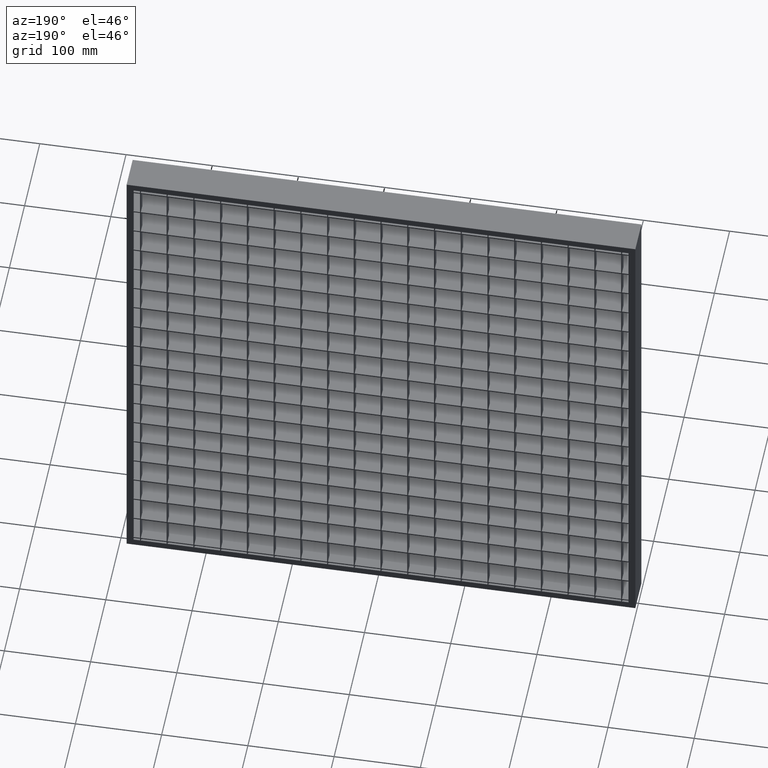
[diagram: clean part render]
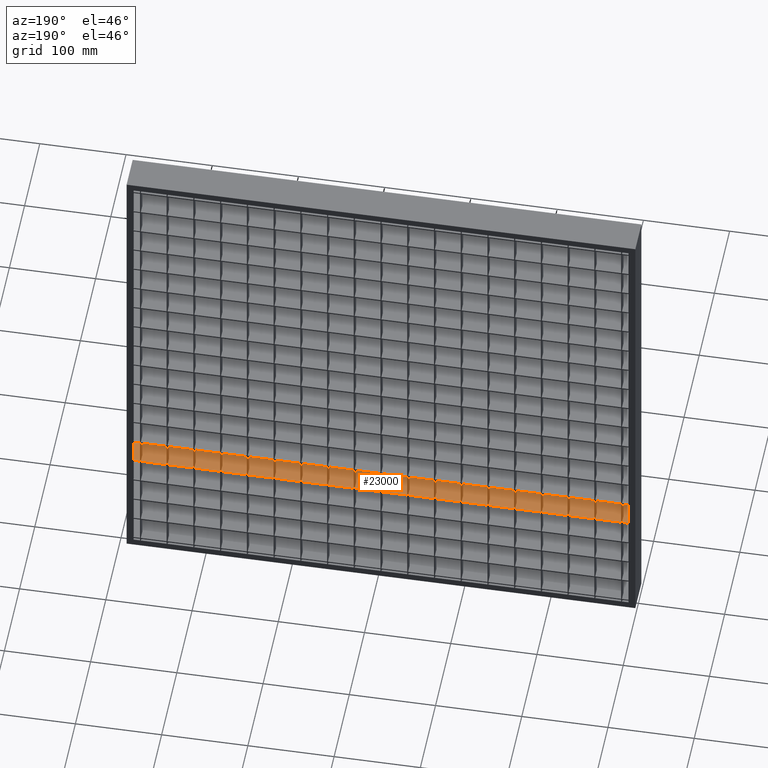
[diagram: same view with one face highlighted and labeled with its STEP entity id]
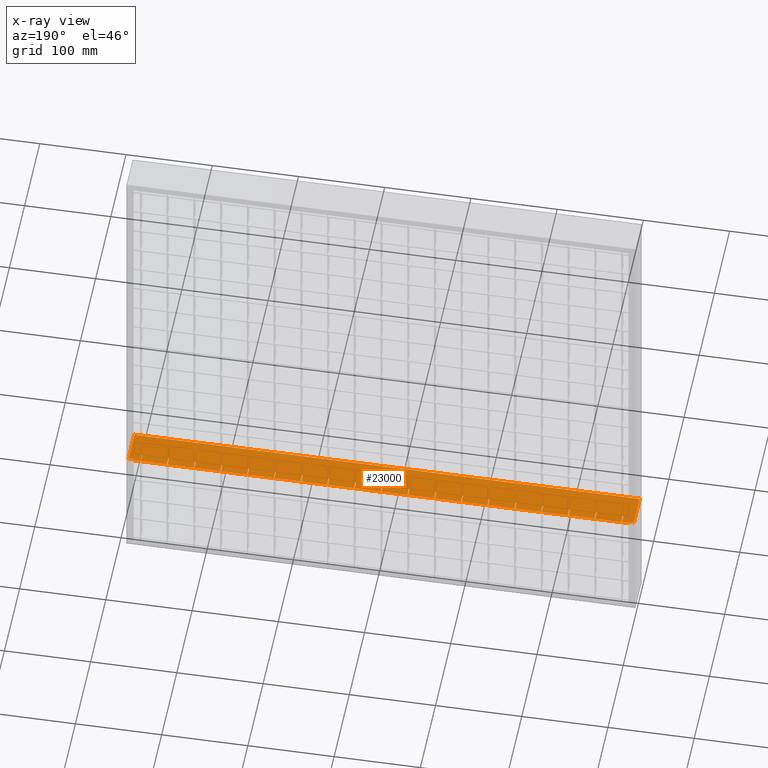
[diagram: x-ray of the same camera — body ghosted, the highlighted face saturated]
A machine part, auxiliary view. The second image highlights one B-rep face of the part: STEP entity #23000.
The next image is the same camera in x-ray: the body ghosted, the highlighted face saturated — about 0% of this face is hidden behind the body in this view.
In plain terms, the highlighted planar face has unit normal (0, 0, -1).
Its self-contained STEP definition (entity closure, byte-faithful):
#56 = LINE ( 'NONE', #35269, #25731 ) ;
#102 = LINE ( 'NONE', #36446, #48086 ) ;
#257 = VERTEX_POINT ( 'NONE', #34202 ) ;
#272 = EDGE_CURVE ( 'NONE', #30001, #2344, #23022, .T. ) ;
#375 = ORIENTED_EDGE ( 'NONE', *, *, #46340, .T. ) ;
#474 = EDGE_CURVE ( 'NONE', #42995, #49754, #27666, .T. ) ;
#583 = DIRECTION ( 'NONE',  ( -1.000000000000000000, -3.061616997868382600E-016, 0.0000000000000000000 ) ) ;
#602 = LINE ( 'NONE', #42723, #22217 ) ;
#747 = CARTESIAN_POINT ( 'NONE',  ( 628.0281151192509700, 20.00000000000019200, -451.7499999999998900 ) ) ;
#845 = CARTESIAN_POINT ( 'NONE',  ( 628.0281151192509700, 20.00000000000019200, -451.7499999999998900 ) ) ;
#851 = DIRECTION ( 'NONE',  ( 0.0000000000000000000, -1.000000000000000000, 0.0000000000000000000 ) ) ;
#895 = CARTESIAN_POINT ( 'NONE',  ( 233.5000000000000300, -19.99999999999981200, -451.7499999999998900 ) ) ;
#930 = VECTOR ( 'NONE', #35834, 1000.000000000000000 ) ;
#1060 = EDGE_CURVE ( 'NONE', #12506, #1970, #48588, .T. ) ;
#1214 = CARTESIAN_POINT ( 'NONE',  ( 480.5000000000000000, 9.999999999999994700, -451.7499999999998900 ) ) ;
#1272 = CARTESIAN_POINT ( 'NONE',  ( 582.0000000000000000, 20.00000000000000000, -451.7499999999998900 ) ) ;
#1314 = VERTEX_POINT ( 'NONE', #40336 ) ;
#1369 = CARTESIAN_POINT ( 'NONE',  ( 7.999999999999991100, 18.00000000000000400, -451.7499999999998900 ) ) ;
#1590 = EDGE_CURVE ( 'NONE', #30001, #13152, #48535, .T. ) ;
#1679 = LINE ( 'NONE', #35198, #55032 ) ;
#1684 = CARTESIAN_POINT ( 'NONE',  ( 294.5000000000000600, -19.99999999999981200, -451.7499999999998900 ) ) ;
#1689 = LINE ( 'NONE', #20512, #49007 ) ;
#1715 = LINE ( 'NONE', #23403, #3695 ) ;
#1780 = ORIENTED_EDGE ( 'NONE', *, *, #31573, .T. ) ;
#1970 = VERTEX_POINT ( 'NONE', #28184 ) ;
#2035 = ORIENTED_EDGE ( 'NONE', *, *, #16934, .T. ) ;
#2344 = VERTEX_POINT ( 'NONE', #6756 ) ;
#2409 = VECTOR ( 'NONE', #14766, 1000.000000000000000 ) ;
#2432 = VERTEX_POINT ( 'NONE', #16583 ) ;
#2786 = VERTEX_POINT ( 'NONE', #3130 ) ;
#2868 = CARTESIAN_POINT ( 'NONE',  ( 232.4999999999999700, 9.999999999999994700, -451.7499999999998900 ) ) ;
#2931 = DIRECTION ( 'NONE',  ( 0.0000000000000000000, 0.0000000000000000000, -1.000000000000000000 ) ) ;
#2940 = LINE ( 'NONE', #9320, #10378 ) ;
#3065 = VECTOR ( 'NONE', #9306, 1000.000000000000000 ) ;
#3130 = CARTESIAN_POINT ( 'NONE',  ( 449.5000000000000600, 20.00000000000013500, -451.7499999999998900 ) ) ;
#3146 = ORIENTED_EDGE ( 'NONE', *, *, #11134, .T. ) ;
#3167 = LINE ( 'NONE', #1369, #52477 ) ;
#3215 = VECTOR ( 'NONE', #54652, 1000.000000000000000 ) ;
#3249 = VERTEX_POINT ( 'NONE', #43847 ) ;
#3354 = VERTEX_POINT ( 'NONE', #23773 ) ;
#3436 = VERTEX_POINT ( 'NONE', #18706 ) ;
#3483 = ORIENTED_EDGE ( 'NONE', *, *, #41565, .T. ) ;
#3513 = LINE ( 'NONE', #45005, #36629 ) ;
#3551 = LINE ( 'NONE', #6658, #36661 ) ;
#3631 = DIRECTION ( 'NONE',  ( 0.0000000000000000000, -1.000000000000000000, 0.0000000000000000000 ) ) ;
#3633 = CARTESIAN_POINT ( 'NONE',  ( 46.50000000000004300, 19.99999999999999600, -451.7499999999998900 ) ) ;
#3667 = EDGE_CURVE ( 'NONE', #5327, #23107, #5759, .T. ) ;
#3695 = VECTOR ( 'NONE', #5479, 1000.000000000000000 ) ;
#3736 = VECTOR ( 'NONE', #15132, 1000.000000000000000 ) ;
#3914 = DIRECTION ( 'NONE',  ( -1.000000000000000000, 0.0000000000000000000, 0.0000000000000000000 ) ) ;
#4121 = VECTOR ( 'NONE', #29717, 1000.000000000000000 ) ;
#4319 = ORIENTED_EDGE ( 'NONE', *, *, #20074, .T. ) ;
#4359 = VECTOR ( 'NONE', #23322, 1000.000000000000000 ) ;
#4393 = VECTOR ( 'NONE', #17902, 1000.000000000000000 ) ;
#4492 = CARTESIAN_POINT ( 'NONE',  ( 201.5000000000000000, 9.999999999999994700, -451.7499999999998900 ) ) ;
#4524 = EDGE_CURVE ( 'NONE', #2432, #16369, #38464, .T. ) ;
#4579 = ORIENTED_EDGE ( 'NONE', *, *, #13310, .F. ) ;
#4752 = CARTESIAN_POINT ( 'NONE',  ( 201.5000000000000300, 19.99999999999999600, -451.7499999999998900 ) ) ;
#5039 = EDGE_CURVE ( 'NONE', #2344, #45655, #6643, .T. ) ;
#5061 = ORIENTED_EDGE ( 'NONE', *, *, #25760, .T. ) ;
#5062 = DIRECTION ( 'NONE',  ( -1.000000000000000000, 0.0000000000000000000, 0.0000000000000000000 ) ) ;
#5076 = VERTEX_POINT ( 'NONE', #9286 ) ;
#5086 = CARTESIAN_POINT ( 'NONE',  ( 325.5000000000000600, -19.99999999999981200, -451.7499999999998900 ) ) ;
#5121 = CARTESIAN_POINT ( 'NONE',  ( 628.0281151192509700, 20.00000000000019200, -451.7499999999998900 ) ) ;
#5156 = CARTESIAN_POINT ( 'NONE',  ( 573.5000000000001100, 20.00000000000017400, -451.7499999999998900 ) ) ;
#5260 = LINE ( 'NONE', #50845, #53200 ) ;
#5305 = VECTOR ( 'NONE', #53056, 1000.000000000000000 ) ;
#5327 = VERTEX_POINT ( 'NONE', #33187 ) ;
#5397 = CARTESIAN_POINT ( 'NONE',  ( 628.0281151192509700, 20.00000000000019200, -451.7499999999998900 ) ) ;
#5459 = ORIENTED_EDGE ( 'NONE', *, *, #51156, .T. ) ;
#5479 = DIRECTION ( 'NONE',  ( 0.0000000000000000000, 1.000000000000000000, 0.0000000000000000000 ) ) ;
#5542 = VECTOR ( 'NONE', #29175, 1000.000000000000000 ) ;
#5721 = VECTOR ( 'NONE', #39272, 1000.000000000000000 ) ;
#5759 = LINE ( 'NONE', #31252, #55751 ) ;
#5762 = CARTESIAN_POINT ( 'NONE',  ( 232.5000000000000300, 19.99999999999999600, -451.7499999999998900 ) ) ;
#5792 = DIRECTION ( 'NONE',  ( 0.0000000000000000000, 1.000000000000000000, 0.0000000000000000000 ) ) ;
#6014 = ORIENTED_EDGE ( 'NONE', *, *, #39205, .T. ) ;
#6102 = DIRECTION ( 'NONE',  ( 1.000000000000000000, 0.0000000000000000000, 0.0000000000000000000 ) ) ;
#6124 = LINE ( 'NONE', #31831, #16968 ) ;
#6136 = ORIENTED_EDGE ( 'NONE', *, *, #50554, .F. ) ;
#6337 = CARTESIAN_POINT ( 'NONE',  ( 357.5000000000001100, 20.00000000000010700, -451.7499999999998900 ) ) ;
#6372 = VECTOR ( 'NONE', #851, 1000.000000000000000 ) ;
#6435 = VERTEX_POINT ( 'NONE', #21443 ) ;
#6466 = DIRECTION ( 'NONE',  ( 0.0000000000000000000, -1.000000000000000000, 0.0000000000000000000 ) ) ;
#6590 = VERTEX_POINT ( 'NONE', #46367 ) ;
#6594 = VERTEX_POINT ( 'NONE', #15981 ) ;
#6605 = ORIENTED_EDGE ( 'NONE', *, *, #55453, .F. ) ;
#6620 = EDGE_CURVE ( 'NONE', #34834, #23215, #41578, .T. ) ;
#6643 = LINE ( 'NONE', #14005, #5305 ) ;
#6658 = CARTESIAN_POINT ( 'NONE',  ( 480.5000000000000000, -19.99999999999981200, -451.7499999999998900 ) ) ;
#6756 = CARTESIAN_POINT ( 'NONE',  ( 387.5000000000000000, 9.999999999999994700, -451.7499999999998900 ) ) ;
#6944 = VECTOR ( 'NONE', #7465, 1000.000000000000000 ) ;
#7225 = ORIENTED_EDGE ( 'NONE', *, *, #474, .T. ) ;
#7293 = VECTOR ( 'NONE', #54649, 1000.000000000000000 ) ;
#7340 = DIRECTION ( 'NONE',  ( 0.0000000000000000000, 1.000000000000000000, 0.0000000000000000000 ) ) ;
#7465 = DIRECTION ( 'NONE',  ( 1.000000000000000000, 0.0000000000000000000, 0.0000000000000000000 ) ) ;
#7530 = LINE ( 'NONE', #5121, #29837 ) ;
#7630 = CARTESIAN_POINT ( 'NONE',  ( 628.0281151192509700, 9.999999999999994700, -451.7499999999998900 ) ) ;
#7691 = DIRECTION ( 'NONE',  ( 0.0000000000000000000, 1.000000000000000000, 0.0000000000000000000 ) ) ;
#7705 = LINE ( 'NONE', #39858, #8413 ) ;
#7750 = CARTESIAN_POINT ( 'NONE',  ( 140.5000000000000600, 9.999999999999998200, -451.7499999999998900 ) ) ;
#7753 = EDGE_CURVE ( 'NONE', #6594, #41534, #54885, .T. ) ;
#7832 = LINE ( 'NONE', #9352, #44320 ) ;
#7947 = EDGE_CURVE ( 'NONE', #54370, #39319, #10270, .T. ) ;
#8400 = CARTESIAN_POINT ( 'NONE',  ( 8.000000000000007100, 20.00000000000000000, -451.7499999999998900 ) ) ;
#8413 = VECTOR ( 'NONE', #18677, 1000.000000000000000 ) ;
#8726 = DIRECTION ( 'NONE',  ( -1.000000000000000000, -3.061616997868382600E-016, 0.0000000000000000000 ) ) ;
#8728 = LINE ( 'NONE', #5397, #22204 ) ;
#9286 = CARTESIAN_POINT ( 'NONE',  ( 139.5000000000000300, 19.99999999999999600, -451.7499999999998900 ) ) ;
#9306 = DIRECTION ( 'NONE',  ( 0.0000000000000000000, 1.000000000000000000, 0.0000000000000000000 ) ) ;
#9320 = CARTESIAN_POINT ( 'NONE',  ( 628.0281151192509700, 9.999999999999994700, -451.7499999999998900 ) ) ;
#9334 = EDGE_CURVE ( 'NONE', #43870, #15240, #53925, .T. ) ;
#9352 = CARTESIAN_POINT ( 'NONE',  ( 628.0281151192509700, 9.999999999999994700, -451.7499999999998900 ) ) ;
#9431 = CARTESIAN_POINT ( 'NONE',  ( 108.5000000000000400, 9.999999999999994700, -451.7499999999998900 ) ) ;
#9511 = DIRECTION ( 'NONE',  ( 0.0000000000000000000, 1.000000000000000000, 0.0000000000000000000 ) ) ;
#9559 = LINE ( 'NONE', #12359, #4121 ) ;
#9580 = DIRECTION ( 'NONE',  ( 0.0000000000000000000, -1.000000000000000000, 0.0000000000000000000 ) ) ;
#9581 = CARTESIAN_POINT ( 'NONE',  ( 628.0281151192509700, 9.999999999999994700, -451.7499999999998900 ) ) ;
#9621 = VECTOR ( 'NONE', #24443, 1000.000000000000000 ) ;
#9643 = EDGE_CURVE ( 'NONE', #55077, #12660, #53223, .T. ) ;
#9658 = VECTOR ( 'NONE', #24899, 1000.000000000000000 ) ;
#9713 = LINE ( 'NONE', #18505, #930 ) ;
#9747 = ORIENTED_EDGE ( 'NONE', *, *, #1060, .F. ) ;
#9803 = CARTESIAN_POINT ( 'NONE',  ( 326.5000000000000600, -19.99999999999981200, -451.7499999999998900 ) ) ;
#9809 = CARTESIAN_POINT ( 'NONE',  ( 202.5000000000000000, 9.999999999999998200, -451.7499999999998900 ) ) ;
#9908 = VECTOR ( 'NONE', #28183, 1000.000000000000000 ) ;
#9931 = EDGE_CURVE ( 'NONE', #20320, #33859, #35604, .T. ) ;
#10270 = LINE ( 'NONE', #21196, #16349 ) ;
#10378 = VECTOR ( 'NONE', #13089, 1000.000000000000000 ) ;
#10443 = VERTEX_POINT ( 'NONE', #46653 ) ;
#10594 = ORIENTED_EDGE ( 'NONE', *, *, #7753, .F. ) ;
#10752 = DIRECTION ( 'NONE',  ( -1.000000000000000000, -3.061616997868382600E-016, 0.0000000000000000000 ) ) ;
#10810 = DIRECTION ( 'NONE',  ( 0.0000000000000000000, 1.000000000000000000, 0.0000000000000000000 ) ) ;
#10884 = VERTEX_POINT ( 'NONE', #53598 ) ;
#10912 = VERTEX_POINT ( 'NONE', #51147 ) ;
#10944 = VERTEX_POINT ( 'NONE', #29789 ) ;
#11034 = VERTEX_POINT ( 'NONE', #18107 ) ;
#11064 = DIRECTION ( 'NONE',  ( 0.0000000000000000000, 1.000000000000000000, 0.0000000000000000000 ) ) ;
#11082 = ORIENTED_EDGE ( 'NONE', *, *, #48229, .T. ) ;
#11094 = VERTEX_POINT ( 'NONE', #43416 ) ;
#11134 = EDGE_CURVE ( 'NONE', #54414, #22662, #42882, .T. ) ;
#11188 = CARTESIAN_POINT ( 'NONE',  ( 628.0281151192509700, 20.00000000000019200, -451.7499999999998900 ) ) ;
#11192 = DIRECTION ( 'NONE',  ( 0.0000000000000000000, -1.000000000000000000, 0.0000000000000000000 ) ) ;
#11256 = DIRECTION ( 'NONE',  ( -1.000000000000000000, -3.061616997868382600E-016, 0.0000000000000000000 ) ) ;
#11279 = VERTEX_POINT ( 'NONE', #24409 ) ;
#11320 = CARTESIAN_POINT ( 'NONE',  ( 171.5000000000000300, 9.999999999999998200, -451.7499999999998900 ) ) ;
#11345 = ORIENTED_EDGE ( 'NONE', *, *, #54625, .T. ) ;
#11438 = CARTESIAN_POINT ( 'NONE',  ( 77.50000000000001400, -19.99999999999981200, -451.7499999999998900 ) ) ;
#11522 = ORIENTED_EDGE ( 'NONE', *, *, #272, .F. ) ;
#11538 = EDGE_CURVE ( 'NONE', #39494, #26748, #40125, .T. ) ;
#11625 = ORIENTED_EDGE ( 'NONE', *, *, #24964, .F. ) ;
#11899 = DIRECTION ( 'NONE',  ( 0.0000000000000000000, 1.000000000000000000, 0.0000000000000000000 ) ) ;
#11911 = ORIENTED_EDGE ( 'NONE', *, *, #31060, .T. ) ;
#11982 = EDGE_CURVE ( 'NONE', #17238, #30414, #3551, .T. ) ;
#12049 = CARTESIAN_POINT ( 'NONE',  ( 628.0281151192509700, 20.00000000000019200, -451.7499999999998900 ) ) ;
#12311 = LINE ( 'NONE', #53472, #28509 ) ;
#12359 = CARTESIAN_POINT ( 'NONE',  ( 78.50000000000001400, -19.99999999999981200, -451.7499999999998900 ) ) ;
#12385 = EDGE_CURVE ( 'NONE', #31869, #43544, #7530, .T. ) ;
#12390 = VECTOR ( 'NONE', #8726, 1000.000000000000000 ) ;
#12506 = VERTEX_POINT ( 'NONE', #31893 ) ;
#12546 = EDGE_CURVE ( 'NONE', #16333, #20048, #44015, .T. ) ;
#12660 = VERTEX_POINT ( 'NONE', #37359 ) ;
#12730 = DIRECTION ( 'NONE',  ( -1.000000000000000000, -3.061616997868382600E-016, 0.0000000000000000000 ) ) ;
#12806 = ORIENTED_EDGE ( 'NONE', *, *, #48152, .T. ) ;
#12848 = VECTOR ( 'NONE', #26072, 1000.000000000000000 ) ;
#12937 = VERTEX_POINT ( 'NONE', #13182 ) ;
#12947 = LINE ( 'NONE', #20937, #31186 ) ;
#13089 = DIRECTION ( 'NONE',  ( 1.000000000000000000, 0.0000000000000000000, 0.0000000000000000000 ) ) ;
#13090 = CARTESIAN_POINT ( 'NONE',  ( 511.5000000000000600, 20.00000000000015600, -451.7499999999998900 ) ) ;
#13152 = VERTEX_POINT ( 'NONE', #6337 ) ;
#13154 = CARTESIAN_POINT ( 'NONE',  ( 295.5000000000000600, 20.00000000000009200, -451.7499999999998900 ) ) ;
#13182 = CARTESIAN_POINT ( 'NONE',  ( 140.5000000000000600, 20.00000000000004300, -451.7499999999998900 ) ) ;
#13299 = VERTEX_POINT ( 'NONE', #28595 ) ;
#13310 = EDGE_CURVE ( 'NONE', #6435, #26748, #28556, .T. ) ;
#13374 = CARTESIAN_POINT ( 'NONE',  ( 78.50000000000001400, 9.999999999999998200, -451.7499999999998900 ) ) ;
#13438 = CARTESIAN_POINT ( 'NONE',  ( 628.0281151192509700, 9.999999999999994700, -451.7499999999998900 ) ) ;
#13486 = VERTEX_POINT ( 'NONE', #25003 ) ;
#13700 = EDGE_CURVE ( 'NONE', #23215, #5076, #12311, .T. ) ;
#13751 = DIRECTION ( 'NONE',  ( -1.000000000000000000, 0.0000000000000000000, 0.0000000000000000000 ) ) ;
#13798 = CARTESIAN_POINT ( 'NONE',  ( 588.0000000000000000, -20.00000000000000400, -451.7499999999998900 ) ) ;
#13899 = DIRECTION ( 'NONE',  ( -1.000000000000000000, -3.061616997868382600E-016, 0.0000000000000000000 ) ) ;
#13924 = ORIENTED_EDGE ( 'NONE', *, *, #47391, .T. ) ;
#14005 = CARTESIAN_POINT ( 'NONE',  ( 628.0281151192509700, 9.999999999999994700, -451.7499999999998900 ) ) ;
#14206 = VERTEX_POINT ( 'NONE', #21520 ) ;
#14230 = EDGE_CURVE ( 'NONE', #5327, #1314, #29752, .T. ) ;
#14328 = DIRECTION ( 'NONE',  ( 1.000000000000000000, 0.0000000000000000000, 0.0000000000000000000 ) ) ;
#14388 = VERTEX_POINT ( 'NONE', #11320 ) ;
#14570 = LINE ( 'NONE', #22132, #3065 ) ;
#14600 = VECTOR ( 'NONE', #16442, 1000.000000000000000 ) ;
#14660 = VERTEX_POINT ( 'NONE', #44086 ) ;
#14766 = DIRECTION ( 'NONE',  ( -1.000000000000000000, -3.061616997868382600E-016, 0.0000000000000000000 ) ) ;
#14831 = LINE ( 'NONE', #52132, #22891 ) ;
#14954 = VERTEX_POINT ( 'NONE', #47429 ) ;
#14956 = VERTEX_POINT ( 'NONE', #21731 ) ;
#14975 = CARTESIAN_POINT ( 'NONE',  ( 542.5000000000000000, -19.99999999999981200, -451.7499999999998900 ) ) ;
#15003 = EDGE_CURVE ( 'NONE', #47680, #13299, #14831, .T. ) ;
#15132 = DIRECTION ( 'NONE',  ( -1.000000000000000000, 0.0000000000000000000, 0.0000000000000000000 ) ) ;
#15204 = LINE ( 'NONE', #845, #52993 ) ;
#15240 = VERTEX_POINT ( 'NONE', #53990 ) ;
#15295 = ORIENTED_EDGE ( 'NONE', *, *, #32713, .T. ) ;
#15303 = LINE ( 'NONE', #20898, #36905 ) ;
#15352 = LINE ( 'NONE', #46090, #18748 ) ;
#15382 = ORIENTED_EDGE ( 'NONE', *, *, #30493, .T. ) ;
#15384 = DIRECTION ( 'NONE',  ( -1.000000000000000000, -3.061616997868382600E-016, 0.0000000000000000000 ) ) ;
#15406 = CARTESIAN_POINT ( 'NONE',  ( 47.49999999999998600, 20.00000000000001400, -451.7499999999998900 ) ) ;
#15506 = ORIENTED_EDGE ( 'NONE', *, *, #29653, .F. ) ;
#15536 = CARTESIAN_POINT ( 'NONE',  ( 574.5000000000000000, 20.00000000000017400, -451.7499999999998900 ) ) ;
#15849 = LINE ( 'NONE', #24049, #39491 ) ;
#15906 = EDGE_CURVE ( 'NONE', #44744, #30165, #49828, .T. ) ;
#15949 = VECTOR ( 'NONE', #53016, 1000.000000000000000 ) ;
#15959 = LINE ( 'NONE', #25281, #14600 ) ;
#15981 = CARTESIAN_POINT ( 'NONE',  ( 542.5000000000000000, 9.999999999999994700, -451.7499999999998900 ) ) ;
#16044 = VECTOR ( 'NONE', #28248, 1000.000000000000000 ) ;
#16178 = CARTESIAN_POINT ( 'NONE',  ( 418.5000000000000600, 9.999999999999994700, -451.7499999999998900 ) ) ;
#16292 = ORIENTED_EDGE ( 'NONE', *, *, #50665, .F. ) ;
#16333 = VERTEX_POINT ( 'NONE', #44103 ) ;
#16349 = VECTOR ( 'NONE', #47650, 1000.000000000000000 ) ;
#16369 = VERTEX_POINT ( 'NONE', #49197 ) ;
#16442 = DIRECTION ( 'NONE',  ( 0.0000000000000000000, -1.000000000000000000, 0.0000000000000000000 ) ) ;
#16524 = ORIENTED_EDGE ( 'NONE', *, *, #50741, .F. ) ;
#16583 = CARTESIAN_POINT ( 'NONE',  ( 2.000000000000003600, 18.00000000000000700, -451.7499999999998900 ) ) ;
#16606 = CARTESIAN_POINT ( 'NONE',  ( 628.0281151192509700, 20.00000000000019200, -451.7499999999998900 ) ) ;
#16897 = DIRECTION ( 'NONE',  ( -1.000000000000000000, -3.061616997868382600E-016, 0.0000000000000000000 ) ) ;
#16934 = EDGE_CURVE ( 'NONE', #49754, #47680, #14570, .T. ) ;
#16968 = VECTOR ( 'NONE', #5792, 1000.000000000000000 ) ;
#16981 = LINE ( 'NONE', #33875, #51426 ) ;
#17058 = VERTEX_POINT ( 'NONE', #31729 ) ;
#17189 = ORIENTED_EDGE ( 'NONE', *, *, #9643, .F. ) ;
#17238 = VERTEX_POINT ( 'NONE', #42971 ) ;
#17368 = EDGE_CURVE ( 'NONE', #2786, #10912, #43567, .T. ) ;
#17517 = CARTESIAN_POINT ( 'NONE',  ( 628.0281151192509700, 9.999999999999994700, -451.7499999999998900 ) ) ;
#17776 = DIRECTION ( 'NONE',  ( -1.000000000000000000, -3.061616997868382600E-016, 0.0000000000000000000 ) ) ;
#17779 = LINE ( 'NONE', #33194, #9658 ) ;
#17902 = DIRECTION ( 'NONE',  ( 0.0000000000000000000, 1.000000000000000000, 0.0000000000000000000 ) ) ;
#18042 = LINE ( 'NONE', #14975, #24094 ) ;
#18107 = CARTESIAN_POINT ( 'NONE',  ( 15.50000000000006900, 9.999999999999994700, -451.7499999999998900 ) ) ;
#18311 = CARTESIAN_POINT ( 'NONE',  ( 295.5000000000000600, 9.999999999999998200, -451.7499999999998900 ) ) ;
#18465 = ORIENTED_EDGE ( 'NONE', *, *, #38007, .F. ) ;
#18505 = CARTESIAN_POINT ( 'NONE',  ( 628.0281151192509700, 9.999999999999994700, -451.7499999999998900 ) ) ;
#18541 = ORIENTED_EDGE ( 'NONE', *, *, #14230, .T. ) ;
#18564 = VECTOR ( 'NONE', #3914, 1000.000000000000000 ) ;
#18677 = DIRECTION ( 'NONE',  ( 0.0000000000000000000, -1.000000000000000000, 0.0000000000000000000 ) ) ;
#18706 = CARTESIAN_POINT ( 'NONE',  ( 588.0000000000001100, 18.00000000000000400, -451.7499999999998900 ) ) ;
#18748 = VECTOR ( 'NONE', #46628, 1000.000000000000000 ) ;
#18901 = EDGE_CURVE ( 'NONE', #29646, #22336, #41609, .T. ) ;
#18918 = DIRECTION ( 'NONE',  ( 1.000000000000000000, 0.0000000000000000000, 0.0000000000000000000 ) ) ;
#18943 = EDGE_CURVE ( 'NONE', #22129, #22190, #25358, .T. ) ;
#19027 = LINE ( 'NONE', #37124, #5542 ) ;
#19143 = LINE ( 'NONE', #22791, #52941 ) ;
#19161 = CARTESIAN_POINT ( 'NONE',  ( 356.5000000000001100, 20.00000000000010700, -451.7499999999998900 ) ) ;
#19217 = LINE ( 'NONE', #40917, #48269 ) ;
#19236 = ORIENTED_EDGE ( 'NONE', *, *, #4524, .F. ) ;
#19290 = EDGE_LOOP ( 'NONE', ( #16524, #11625, #23872, #26182, #16292, #10594, #6136, #15382, #52487, #9747, #22783, #36277, #4579, #38855, #43458, #21207, #51948, #55323, #47129, #13924, #27282, #32154, #20952, #18541, #15506, #32971, #11522, #46694, #24649, #6605, #25637, #52556, #18465, #28594, #34134, #50057, #11082, #21441, #3483, #11345, #3146, #48434, #4319, #47704, #53930, #38494, #15295, #34006, #30817, #7225, #2035, #43605, #25408, #6014, #20766, #5061, #47507, #36732, #50705, #24708, #5459, #25660, #31689, #375, #12806, #49405, #45069, #27614, #55085, #22215, #33345, #23846, #36246, #1780, #33617, #55540, #31309, #19236, #35816, #43392, #11911, #36865, #17189, #24671 ) ) ;
#19528 = LINE ( 'NONE', #38075, #45869 ) ;
#19601 = LINE ( 'NONE', #43227, #24315 ) ;
#19734 = CARTESIAN_POINT ( 'NONE',  ( 325.5000000000000600, 20.00000000000009600, -451.7499999999998900 ) ) ;
#20027 = CARTESIAN_POINT ( 'NONE',  ( 628.0281151192509700, 9.999999999999994700, -451.7499999999998900 ) ) ;
#20048 = VERTEX_POINT ( 'NONE', #15406 ) ;
#20074 = EDGE_CURVE ( 'NONE', #3354, #10443, #19217, .T. ) ;
#20093 = EDGE_CURVE ( 'NONE', #37104, #17058, #33381, .T. ) ;
#20133 = PLANE ( 'NONE',  #40677 ) ;
#20254 = VECTOR ( 'NONE', #7691, 1000.000000000000000 ) ;
#20284 = CARTESIAN_POINT ( 'NONE',  ( 450.5000000000000600, 20.00000000000013500, -451.7499999999998900 ) ) ;
#20310 = CARTESIAN_POINT ( 'NONE',  ( 628.0281151192509700, 9.999999999999994700, -451.7499999999998900 ) ) ;
#20320 = VERTEX_POINT ( 'NONE', #3633 ) ;
#20340 = EDGE_CURVE ( 'NONE', #39771, #30778, #48915, .T. ) ;
#20374 = DIRECTION ( 'NONE',  ( -1.000000000000000000, -3.061616997868382600E-016, 0.0000000000000000000 ) ) ;
#20475 = EDGE_CURVE ( 'NONE', #10912, #54370, #2940, .T. ) ;
#20512 = CARTESIAN_POINT ( 'NONE',  ( 140.5000000000000600, -19.99999999999981200, -451.7499999999998900 ) ) ;
#20766 = ORIENTED_EDGE ( 'NONE', *, *, #55949, .T. ) ;
#20821 = VERTEX_POINT ( 'NONE', #51003 ) ;
#20898 = CARTESIAN_POINT ( 'NONE',  ( 574.5000000000000000, -19.99999999999981200, -451.7499999999998900 ) ) ;
#20937 = CARTESIAN_POINT ( 'NONE',  ( 357.5000000000001100, -19.99999999999981200, -451.7499999999998900 ) ) ;
#20952 = ORIENTED_EDGE ( 'NONE', *, *, #3667, .F. ) ;
#21196 = CARTESIAN_POINT ( 'NONE',  ( 450.5000000000000600, -19.99999999999981200, -451.7499999999998900 ) ) ;
#21207 = ORIENTED_EDGE ( 'NONE', *, *, #33862, .T. ) ;
#21233 = VECTOR ( 'NONE', #47278, 1000.000000000000000 ) ;
#21341 = DIRECTION ( 'NONE',  ( -1.000000000000000000, -3.061616997868382600E-016, 0.0000000000000000000 ) ) ;
#21441 = ORIENTED_EDGE ( 'NONE', *, *, #50887, .T. ) ;
#21443 = CARTESIAN_POINT ( 'NONE',  ( 481.4999999999999400, 9.999999999999994700, -451.7499999999998900 ) ) ;
#21520 = CARTESIAN_POINT ( 'NONE',  ( 170.5000000000000300, 9.999999999999994700, -451.7499999999998900 ) ) ;
#21535 = DIRECTION ( 'NONE',  ( 0.0000000000000000000, -1.000000000000000000, 0.0000000000000000000 ) ) ;
#21723 = EDGE_CURVE ( 'NONE', #22190, #2432, #6124, .T. ) ;
#21731 = CARTESIAN_POINT ( 'NONE',  ( 357.5000000000001100, 9.999999999999994700, -451.7499999999998900 ) ) ;
#21944 = VECTOR ( 'NONE', #5062, 1000.000000000000000 ) ;
#22061 = CARTESIAN_POINT ( 'NONE',  ( 264.5000000000000600, -19.99999999999981200, -451.7499999999998900 ) ) ;
#22129 = VERTEX_POINT ( 'NONE', #13798 ) ;
#22132 = CARTESIAN_POINT ( 'NONE',  ( 201.5000000000000000, -19.99999999999981200, -451.7499999999998900 ) ) ;
#22190 = VERTEX_POINT ( 'NONE', #35478 ) ;
#22204 = VECTOR ( 'NONE', #22943, 1000.000000000000000 ) ;
#22215 = ORIENTED_EDGE ( 'NONE', *, *, #20340, .T. ) ;
#22217 = VECTOR ( 'NONE', #51214, 1000.000000000000000 ) ;
#22233 = CARTESIAN_POINT ( 'NONE',  ( 356.5000000000001100, -19.99999999999981200, -451.7499999999998900 ) ) ;
#22336 = VERTEX_POINT ( 'NONE', #36980 ) ;
#22494 = LINE ( 'NONE', #20310, #6944 ) ;
#22662 = VERTEX_POINT ( 'NONE', #39840 ) ;
#22710 = LINE ( 'NONE', #38300, #45041 ) ;
#22783 = ORIENTED_EDGE ( 'NONE', *, *, #46216, .F. ) ;
#22791 = CARTESIAN_POINT ( 'NONE',  ( 628.0281151192509700, 9.999999999999994700, -451.7499999999998900 ) ) ;
#22891 = VECTOR ( 'NONE', #17776, 1000.000000000000000 ) ;
#22943 = DIRECTION ( 'NONE',  ( -1.000000000000000000, -3.061616997868382600E-016, 0.0000000000000000000 ) ) ;
#22951 = DIRECTION ( 'NONE',  ( 0.0000000000000000000, -1.000000000000000000, 0.0000000000000000000 ) ) ;
#22972 = EDGE_CURVE ( 'NONE', #22336, #16333, #37729, .T. ) ;
#23000 = ADVANCED_FACE ( 'NONE', ( #25562 ), #20133, .F. ) ;
#23022 = LINE ( 'NONE', #38549, #46647 ) ;
#23107 = VERTEX_POINT ( 'NONE', #16178 ) ;
#23215 = VERTEX_POINT ( 'NONE', #25563 ) ;
#23322 = DIRECTION ( 'NONE',  ( 0.0000000000000000000, -1.000000000000000000, 0.0000000000000000000 ) ) ;
#23360 = CARTESIAN_POINT ( 'NONE',  ( 294.5000000000000600, 9.999999999999994700, -451.7499999999998900 ) ) ;
#23403 = CARTESIAN_POINT ( 'NONE',  ( 588.0000000000000000, -19.99999999999981200, -451.7499999999998900 ) ) ;
#23448 = CARTESIAN_POINT ( 'NONE',  ( 47.49999999999998600, 9.999999999999998200, -451.7499999999998900 ) ) ;
#23609 = LINE ( 'NONE', #54877, #20254 ) ;
#23713 = CARTESIAN_POINT ( 'NONE',  ( 582.0000000000000000, 18.00000000000000400, -451.7499999999998900 ) ) ;
#23773 = CARTESIAN_POINT ( 'NONE',  ( 263.5000000000000600, 9.999999999999994700, -451.7499999999998900 ) ) ;
#23846 = ORIENTED_EDGE ( 'NONE', *, *, #9931, .T. ) ;
#23872 = ORIENTED_EDGE ( 'NONE', *, *, #20093, .F. ) ;
#24049 = CARTESIAN_POINT ( 'NONE',  ( 628.0281151192509700, 20.00000000000019200, -451.7499999999998900 ) ) ;
#24094 = VECTOR ( 'NONE', #6466, 1000.000000000000000 ) ;
#24315 = VECTOR ( 'NONE', #26206, 1000.000000000000000 ) ;
#24409 = CARTESIAN_POINT ( 'NONE',  ( 419.5000000000000600, 20.00000000000012800, -451.7499999999998900 ) ) ;
#24443 = DIRECTION ( 'NONE',  ( 1.000000000000000000, 0.0000000000000000000, 0.0000000000000000000 ) ) ;
#24571 = VECTOR ( 'NONE', #51604, 1000.000000000000000 ) ;
#24640 = CARTESIAN_POINT ( 'NONE',  ( 628.0281151192509700, 9.999999999999994700, -451.7499999999998900 ) ) ;
#24649 = ORIENTED_EDGE ( 'NONE', *, *, #40049, .F. ) ;
#24671 = ORIENTED_EDGE ( 'NONE', *, *, #29386, .T. ) ;
#24708 = ORIENTED_EDGE ( 'NONE', *, *, #33275, .T. ) ;
#24883 = VECTOR ( 'NONE', #9580, 1000.000000000000000 ) ;
#24899 = DIRECTION ( 'NONE',  ( 0.0000000000000000000, 1.000000000000000000, 0.0000000000000000000 ) ) ;
#24936 = LINE ( 'NONE', #747, #25618 ) ;
#24964 = EDGE_CURVE ( 'NONE', #17058, #3249, #9713, .T. ) ;
#25003 = CARTESIAN_POINT ( 'NONE',  ( 233.5000000000000900, 20.00000000000007100, -451.7499999999998900 ) ) ;
#25175 = EDGE_CURVE ( 'NONE', #11034, #44744, #17779, .T. ) ;
#25281 = CARTESIAN_POINT ( 'NONE',  ( 109.5000000000000400, -19.99999999999981200, -451.7499999999998900 ) ) ;
#25358 = LINE ( 'NONE', #40648, #2409 ) ;
#25408 = ORIENTED_EDGE ( 'NONE', *, *, #33387, .T. ) ;
#25562 = FACE_OUTER_BOUND ( 'NONE', #19290, .T. ) ;
#25563 = CARTESIAN_POINT ( 'NONE',  ( 139.5000000000000000, 9.999999999999994700, -451.7499999999998900 ) ) ;
#25618 = VECTOR ( 'NONE', #36773, 1000.000000000000000 ) ;
#25637 = ORIENTED_EDGE ( 'NONE', *, *, #9334, .F. ) ;
#25660 = ORIENTED_EDGE ( 'NONE', *, *, #44340, .T. ) ;
#25673 = VECTOR ( 'NONE', #50448, 1000.000000000000000 ) ;
#25731 = VECTOR ( 'NONE', #44543, 1000.000000000000000 ) ;
#25760 = EDGE_CURVE ( 'NONE', #10884, #12937, #29847, .T. ) ;
#25818 = VECTOR ( 'NONE', #18918, 1000.000000000000000 ) ;
#26072 = DIRECTION ( 'NONE',  ( -1.000000000000000000, 0.0000000000000000000, 0.0000000000000000000 ) ) ;
#26182 = ORIENTED_EDGE ( 'NONE', *, *, #54939, .T. ) ;
#26191 = DIRECTION ( 'NONE',  ( -1.000000000000000000, -3.061616997868382600E-016, 0.0000000000000000000 ) ) ;
#26206 = DIRECTION ( 'NONE',  ( 0.0000000000000000000, 1.000000000000000000, 0.0000000000000000000 ) ) ;
#26495 = CARTESIAN_POINT ( 'NONE',  ( 628.0281151192509700, 20.00000000000019200, -451.7499999999998900 ) ) ;
#26583 = CARTESIAN_POINT ( 'NONE',  ( 16.49999999999995700, 20.00000000000000400, -451.7499999999998900 ) ) ;
#26722 = VERTEX_POINT ( 'NONE', #15536 ) ;
#26748 = VERTEX_POINT ( 'NONE', #40391 ) ;
#26918 = VECTOR ( 'NONE', #14328, 1000.000000000000000 ) ;
#27282 = ORIENTED_EDGE ( 'NONE', *, *, #35920, .F. ) ;
#27555 = VECTOR ( 'NONE', #52140, 1000.000000000000000 ) ;
#27559 = EDGE_CURVE ( 'NONE', #1970, #14954, #37811, .T. ) ;
#27614 = ORIENTED_EDGE ( 'NONE', *, *, #12546, .T. ) ;
#27666 = LINE ( 'NONE', #13438, #12848 ) ;
#27830 = CARTESIAN_POINT ( 'NONE',  ( 109.5000000000000400, 9.999999999999998200, -451.7499999999998900 ) ) ;
#28183 = DIRECTION ( 'NONE',  ( -1.000000000000000000, -3.061616997868382600E-016, 0.0000000000000000000 ) ) ;
#28184 = CARTESIAN_POINT ( 'NONE',  ( 512.5000000000000000, 9.999999999999994700, -451.7499999999998900 ) ) ;
#28248 = DIRECTION ( 'NONE',  ( -1.000000000000000000, -3.061616997868382600E-016, 0.0000000000000000000 ) ) ;
#28389 = CARTESIAN_POINT ( 'NONE',  ( 628.0281151192509700, 9.999999999999994700, -451.7499999999998900 ) ) ;
#28509 = VECTOR ( 'NONE', #9511, 1000.000000000000000 ) ;
#28556 = LINE ( 'NONE', #49949, #44783 ) ;
#28594 = ORIENTED_EDGE ( 'NONE', *, *, #34214, .F. ) ;
#28595 = CARTESIAN_POINT ( 'NONE',  ( 171.5000000000000300, 20.00000000000005300, -451.7499999999998900 ) ) ;
#28717 = VECTOR ( 'NONE', #39449, 1000.000000000000000 ) ;
#28795 = LINE ( 'NONE', #11188, #9908 ) ;
#28800 = CARTESIAN_POINT ( 'NONE',  ( 628.0281151192509700, 20.00000000000019200, -451.7499999999998900 ) ) ;
#28805 = CARTESIAN_POINT ( 'NONE',  ( 628.0281151192509700, -19.99999999999981200, -451.7499999999998900 ) ) ;
#29175 = DIRECTION ( 'NONE',  ( -1.000000000000000000, -3.061616997868382600E-016, 0.0000000000000000000 ) ) ;
#29386 = EDGE_CURVE ( 'NONE', #55077, #26722, #44985, .T. ) ;
#29526 = LINE ( 'NONE', #1684, #34239 ) ;
#29600 = EDGE_CURVE ( 'NONE', #13486, #6590, #45644, .T. ) ;
#29646 = VERTEX_POINT ( 'NONE', #13374 ) ;
#29653 = EDGE_CURVE ( 'NONE', #45655, #1314, #46291, .T. ) ;
#29661 = EDGE_CURVE ( 'NONE', #6590, #54888, #49642, .T. ) ;
#29698 = CARTESIAN_POINT ( 'NONE',  ( 264.5000000000000600, 20.00000000000008200, -451.7499999999998900 ) ) ;
#29717 = DIRECTION ( 'NONE',  ( 0.0000000000000000000, -1.000000000000000000, 0.0000000000000000000 ) ) ;
#29752 = LINE ( 'NONE', #51182, #31110 ) ;
#29789 = CARTESIAN_POINT ( 'NONE',  ( 109.5000000000000400, 20.00000000000003200, -451.7499999999998900 ) ) ;
#29837 = VECTOR ( 'NONE', #583, 1000.000000000000000 ) ;
#29847 = LINE ( 'NONE', #28800, #31195 ) ;
#30001 = VERTEX_POINT ( 'NONE', #49959 ) ;
#30165 = VERTEX_POINT ( 'NONE', #8400 ) ;
#30227 = CARTESIAN_POINT ( 'NONE',  ( 46.50000000000009900, 9.999999999999994700, -451.7499999999998900 ) ) ;
#30310 = EDGE_CURVE ( 'NONE', #30414, #6435, #7832, .T. ) ;
#30414 = VERTEX_POINT ( 'NONE', #1214 ) ;
#30493 = EDGE_CURVE ( 'NONE', #55370, #14954, #28795, .T. ) ;
#30778 = VERTEX_POINT ( 'NONE', #30227 ) ;
#30817 = ORIENTED_EDGE ( 'NONE', *, *, #37485, .T. ) ;
#30897 = VECTOR ( 'NONE', #16897, 1000.000000000000000 ) ;
#31060 = EDGE_CURVE ( 'NONE', #22129, #3436, #1715, .T. ) ;
#31110 = VECTOR ( 'NONE', #21341, 1000.000000000000000 ) ;
#31186 = VECTOR ( 'NONE', #11899, 1000.000000000000000 ) ;
#31195 = VECTOR ( 'NONE', #11256, 1000.000000000000000 ) ;
#31252 = CARTESIAN_POINT ( 'NONE',  ( 418.5000000000000600, -19.99999999999981200, -451.7499999999998900 ) ) ;
#31301 = LINE ( 'NONE', #28389, #54916 ) ;
#31309 = ORIENTED_EDGE ( 'NONE', *, *, #50593, .F. ) ;
#31411 = VECTOR ( 'NONE', #37679, 1000.000000000000000 ) ;
#31573 = EDGE_CURVE ( 'NONE', #43218, #11034, #38850, .T. ) ;
#31580 = CARTESIAN_POINT ( 'NONE',  ( 628.0281151192509700, 20.00000000000019200, -451.7499999999998900 ) ) ;
#31591 = DIRECTION ( 'NONE',  ( 0.0000000000000000000, 1.000000000000000000, 0.0000000000000000000 ) ) ;
#31689 = ORIENTED_EDGE ( 'NONE', *, *, #36289, .T. ) ;
#31729 = CARTESIAN_POINT ( 'NONE',  ( 573.5000000000001100, 9.999999999999994700, -451.7499999999998900 ) ) ;
#31750 = VERTEX_POINT ( 'NONE', #27830 ) ;
#31831 = CARTESIAN_POINT ( 'NONE',  ( 2.000000000000003600, -20.00000000000000000, -451.7499999999998900 ) ) ;
#31869 = VERTEX_POINT ( 'NONE', #19734 ) ;
#31880 = DIRECTION ( 'NONE',  ( 0.0000000000000000000, 1.000000000000000000, 0.0000000000000000000 ) ) ;
#31893 = CARTESIAN_POINT ( 'NONE',  ( 511.5000000000000600, 9.999999999999994700, -451.7499999999998900 ) ) ;
#32060 = CARTESIAN_POINT ( 'NONE',  ( 16.50000000000007100, 9.999999999999998200, -451.7499999999998900 ) ) ;
#32107 = CARTESIAN_POINT ( 'NONE',  ( 628.0281151192509700, 9.999999999999994700, -451.7499999999998900 ) ) ;
#32154 = ORIENTED_EDGE ( 'NONE', *, *, #50014, .F. ) ;
#32237 = CARTESIAN_POINT ( 'NONE',  ( 325.5000000000000600, 9.999999999999994700, -451.7499999999998900 ) ) ;
#32713 = EDGE_CURVE ( 'NONE', #54888, #41853, #34581, .T. ) ;
#32971 = ORIENTED_EDGE ( 'NONE', *, *, #5039, .F. ) ;
#33117 = CARTESIAN_POINT ( 'NONE',  ( 450.5000000000000000, 9.999999999999994700, -451.7499999999998900 ) ) ;
#33187 = CARTESIAN_POINT ( 'NONE',  ( 418.5000000000000600, 20.00000000000012800, -451.7499999999998900 ) ) ;
#33194 = CARTESIAN_POINT ( 'NONE',  ( 15.49999999999995700, -19.99999999999981200, -451.7499999999998900 ) ) ;
#33275 = EDGE_CURVE ( 'NONE', #5076, #10944, #45315, .T. ) ;
#33345 = ORIENTED_EDGE ( 'NONE', *, *, #45105, .T. ) ;
#33381 = LINE ( 'NONE', #49931, #4359 ) ;
#33387 = EDGE_CURVE ( 'NONE', #13299, #14388, #46655, .T. ) ;
#33472 = LINE ( 'NONE', #20027, #46346 ) ;
#33617 = ORIENTED_EDGE ( 'NONE', *, *, #25175, .T. ) ;
#33850 = VERTEX_POINT ( 'NONE', #18311 ) ;
#33859 = VERTEX_POINT ( 'NONE', #26583 ) ;
#33862 = EDGE_CURVE ( 'NONE', #17238, #39319, #24936, .T. ) ;
#33875 = CARTESIAN_POINT ( 'NONE',  ( 295.5000000000000600, -19.99999999999981200, -451.7499999999998900 ) ) ;
#34006 = ORIENTED_EDGE ( 'NONE', *, *, #54689, .T. ) ;
#34134 = ORIENTED_EDGE ( 'NONE', *, *, #37845, .F. ) ;
#34202 = CARTESIAN_POINT ( 'NONE',  ( 326.5000000000000600, 9.999999999999994700, -451.7499999999998900 ) ) ;
#34214 = EDGE_CURVE ( 'NONE', #51498, #257, #19528, .T. ) ;
#34239 = VECTOR ( 'NONE', #31880, 1000.000000000000000 ) ;
#34560 = CARTESIAN_POINT ( 'NONE',  ( 628.0281151192509700, 20.00000000000019200, -451.7499999999998900 ) ) ;
#34581 = LINE ( 'NONE', #41278, #50790 ) ;
#34834 = VERTEX_POINT ( 'NONE', #7750 ) ;
#34837 = CARTESIAN_POINT ( 'NONE',  ( 388.4999999999999400, 9.999999999999994700, -451.7499999999998900 ) ) ;
#34903 = VERTEX_POINT ( 'NONE', #9431 ) ;
#35198 = CARTESIAN_POINT ( 'NONE',  ( 628.0281151192509700, 20.00000000000019200, -451.7499999999998900 ) ) ;
#35269 = CARTESIAN_POINT ( 'NONE',  ( 46.50000000000009900, -19.99999999999981200, -451.7499999999998900 ) ) ;
#35478 = CARTESIAN_POINT ( 'NONE',  ( 2.000000000000003600, -20.00000000000000000, -451.7499999999999400 ) ) ;
#35604 = LINE ( 'NONE', #51812, #30897 ) ;
#35623 = CARTESIAN_POINT ( 'NONE',  ( 388.5000000000000000, -19.99999999999981200, -451.7499999999998900 ) ) ;
#35749 = LINE ( 'NONE', #52331, #27555 ) ;
#35816 = ORIENTED_EDGE ( 'NONE', *, *, #21723, .F. ) ;
#35834 = DIRECTION ( 'NONE',  ( 1.000000000000000000, 0.0000000000000000000, 0.0000000000000000000 ) ) ;
#35920 = EDGE_CURVE ( 'NONE', #43418, #11279, #19601, .T. ) ;
#36199 = CARTESIAN_POINT ( 'NONE',  ( 628.0281151192509700, 9.999999999999994700, -451.7499999999998900 ) ) ;
#36246 = ORIENTED_EDGE ( 'NONE', *, *, #37011, .T. ) ;
#36267 = DIRECTION ( 'NONE',  ( -1.000000000000000000, 0.0000000000000000000, 0.0000000000000000000 ) ) ;
#36277 = ORIENTED_EDGE ( 'NONE', *, *, #11538, .T. ) ;
#36289 = EDGE_CURVE ( 'NONE', #34903, #52740, #23609, .T. ) ;
#36446 = CARTESIAN_POINT ( 'NONE',  ( 628.0281151192509700, 9.999999999999994700, -451.7499999999998900 ) ) ;
#36520 = DIRECTION ( 'NONE',  ( 0.0000000000000000000, 1.000000000000000000, 0.0000000000000000000 ) ) ;
#36523 = DIRECTION ( 'NONE',  ( -1.000000000000000000, 0.0000000000000000000, 0.0000000000000000000 ) ) ;
#36541 = CARTESIAN_POINT ( 'NONE',  ( 628.0281151192509700, 9.999999999999994700, -451.7499999999998900 ) ) ;
#36559 = VECTOR ( 'NONE', #10752, 1000.000000000000000 ) ;
#36607 = EDGE_CURVE ( 'NONE', #43870, #20821, #8728, .T. ) ;
#36629 = VECTOR ( 'NONE', #10810, 1000.000000000000000 ) ;
#36661 = VECTOR ( 'NONE', #11192, 1000.000000000000000 ) ;
#36732 = ORIENTED_EDGE ( 'NONE', *, *, #6620, .T. ) ;
#36773 = DIRECTION ( 'NONE',  ( -1.000000000000000000, -3.061616997868382600E-016, 0.0000000000000000000 ) ) ;
#36865 = ORIENTED_EDGE ( 'NONE', *, *, #39716, .F. ) ;
#36905 = VECTOR ( 'NONE', #7340, 1000.000000000000000 ) ;
#36980 = CARTESIAN_POINT ( 'NONE',  ( 77.50000000000012800, 9.999999999999994700, -451.7499999999998900 ) ) ;
#37011 = EDGE_CURVE ( 'NONE', #33859, #43218, #5260, .T. ) ;
#37069 = VECTOR ( 'NONE', #11064, 1000.000000000000000 ) ;
#37104 = VERTEX_POINT ( 'NONE', #5156 ) ;
#37124 = CARTESIAN_POINT ( 'NONE',  ( 628.0281151192509700, 20.00000000000019200, -451.7499999999998900 ) ) ;
#37359 = CARTESIAN_POINT ( 'NONE',  ( 582.0000000000000000, 18.00000000000000400, -451.7499999999998900 ) ) ;
#37485 = EDGE_CURVE ( 'NONE', #11094, #42995, #15352, .T. ) ;
#37588 = DIRECTION ( 'NONE',  ( -1.000000000000000000, 0.0000000000000000000, 0.0000000000000000000 ) ) ;
#37620 = CARTESIAN_POINT ( 'NONE',  ( 512.5000000000000000, -19.99999999999981200, -451.7499999999998900 ) ) ;
#37679 = DIRECTION ( 'NONE',  ( -1.000000000000000000, 0.0000000000000000000, 0.0000000000000000000 ) ) ;
#37729 = LINE ( 'NONE', #11438, #37069 ) ;
#37811 = LINE ( 'NONE', #37620, #41201 ) ;
#37845 = EDGE_CURVE ( 'NONE', #31869, #51498, #46336, .T. ) ;
#37890 = DIRECTION ( 'NONE',  ( 1.000000000000000000, 0.0000000000000000000, 0.0000000000000000000 ) ) ;
#38007 = EDGE_CURVE ( 'NONE', #257, #20821, #54439, .T. ) ;
#38075 = CARTESIAN_POINT ( 'NONE',  ( 628.0281151192509700, 9.999999999999994700, -451.7499999999998900 ) ) ;
#38300 = CARTESIAN_POINT ( 'NONE',  ( 543.5000000000001100, -19.99999999999981200, -451.7499999999998900 ) ) ;
#38464 = LINE ( 'NONE', #48033, #44539 ) ;
#38494 = ORIENTED_EDGE ( 'NONE', *, *, #29661, .T. ) ;
#38524 = EDGE_CURVE ( 'NONE', #10443, #13486, #1679, .T. ) ;
#38549 = CARTESIAN_POINT ( 'NONE',  ( 387.5000000000000000, -19.99999999999981200, -451.7499999999998900 ) ) ;
#38850 = LINE ( 'NONE', #17517, #18564 ) ;
#38855 = ORIENTED_EDGE ( 'NONE', *, *, #30310, .F. ) ;
#38932 = VECTOR ( 'NONE', #52088, 1000.000000000000000 ) ;
#39205 = EDGE_CURVE ( 'NONE', #14388, #14206, #31301, .T. ) ;
#39272 = DIRECTION ( 'NONE',  ( 0.0000000000000000000, -1.000000000000000000, 0.0000000000000000000 ) ) ;
#39319 = VERTEX_POINT ( 'NONE', #20284 ) ;
#39449 = DIRECTION ( 'NONE',  ( 0.0000000000000000000, -1.000000000000000000, 0.0000000000000000000 ) ) ;
#39491 = VECTOR ( 'NONE', #15384, 1000.000000000000000 ) ;
#39494 = VERTEX_POINT ( 'NONE', #13090 ) ;
#39716 = EDGE_CURVE ( 'NONE', #12660, #3436, #48129, .T. ) ;
#39771 = VERTEX_POINT ( 'NONE', #23448 ) ;
#39840 = CARTESIAN_POINT ( 'NONE',  ( 264.5000000000000600, 9.999999999999998200, -451.7499999999998900 ) ) ;
#39858 = CARTESIAN_POINT ( 'NONE',  ( 47.49999999999998600, -19.99999999999981200, -451.7499999999998900 ) ) ;
#39959 = CARTESIAN_POINT ( 'NONE',  ( 449.5000000000000600, -19.99999999999981200, -451.7499999999998900 ) ) ;
#40049 = EDGE_CURVE ( 'NONE', #14956, #13152, #12947, .T. ) ;
#40125 = LINE ( 'NONE', #34560, #12390 ) ;
#40336 = CARTESIAN_POINT ( 'NONE',  ( 388.5000000000000000, 20.00000000000011700, -451.7499999999998900 ) ) ;
#40391 = CARTESIAN_POINT ( 'NONE',  ( 481.5000000000000000, 20.00000000000014600, -451.7499999999998900 ) ) ;
#40487 = DIRECTION ( 'NONE',  ( -1.000000000000000000, -3.061616997868382600E-016, 0.0000000000000000000 ) ) ;
#40565 = CARTESIAN_POINT ( 'NONE',  ( 542.5000000000000000, 20.00000000000016300, -451.7499999999998900 ) ) ;
#40648 = CARTESIAN_POINT ( 'NONE',  ( 628.0281151192509700, -19.99999999999981200, -451.7499999999998900 ) ) ;
#40677 = AXIS2_PLACEMENT_3D ( 'NONE', #28805, #2931, #50876 ) ;
#40917 = CARTESIAN_POINT ( 'NONE',  ( 263.5000000000000600, -19.99999999999981200, -451.7499999999998900 ) ) ;
#41201 = VECTOR ( 'NONE', #50462, 1000.000000000000000 ) ;
#41278 = CARTESIAN_POINT ( 'NONE',  ( 232.5000000000000300, -19.99999999999981200, -451.7499999999998900 ) ) ;
#41534 = VERTEX_POINT ( 'NONE', #54139 ) ;
#41565 = EDGE_CURVE ( 'NONE', #47887, #42129, #29526, .T. ) ;
#41578 = LINE ( 'NONE', #24640, #31411 ) ;
#41598 = VECTOR ( 'NONE', #20374, 1000.000000000000000 ) ;
#41609 = LINE ( 'NONE', #32107, #3736 ) ;
#41853 = VERTEX_POINT ( 'NONE', #5762 ) ;
#41877 = DIRECTION ( 'NONE',  ( 0.0000000000000000000, -1.000000000000000000, 0.0000000000000000000 ) ) ;
#42080 = DIRECTION ( 'NONE',  ( 0.0000000000000000000, 1.000000000000000000, 0.0000000000000000000 ) ) ;
#42129 = VERTEX_POINT ( 'NONE', #54984 ) ;
#42602 = VECTOR ( 'NONE', #40487, 1000.000000000000000 ) ;
#42638 = VERTEX_POINT ( 'NONE', #45737 ) ;
#42723 = CARTESIAN_POINT ( 'NONE',  ( 511.5000000000000600, -19.99999999999981200, -451.7499999999998900 ) ) ;
#42882 = LINE ( 'NONE', #22061, #5721 ) ;
#42971 = CARTESIAN_POINT ( 'NONE',  ( 480.5000000000000000, 20.00000000000014600, -451.7499999999998900 ) ) ;
#42993 = EDGE_CURVE ( 'NONE', #20048, #39771, #7705, .T. ) ;
#42995 = VERTEX_POINT ( 'NONE', #9809 ) ;
#43098 = VECTOR ( 'NONE', #26191, 1000.000000000000000 ) ;
#43218 = VERTEX_POINT ( 'NONE', #32060 ) ;
#43227 = CARTESIAN_POINT ( 'NONE',  ( 419.5000000000000600, -19.99999999999981200, -451.7499999999998900 ) ) ;
#43392 = ORIENTED_EDGE ( 'NONE', *, *, #18943, .F. ) ;
#43416 = CARTESIAN_POINT ( 'NONE',  ( 202.5000000000000600, 20.00000000000006000, -451.7499999999998900 ) ) ;
#43418 = VERTEX_POINT ( 'NONE', #56006 ) ;
#43458 = ORIENTED_EDGE ( 'NONE', *, *, #11982, .F. ) ;
#43533 = DIRECTION ( 'NONE',  ( 1.000000000000000000, 0.0000000000000000000, 0.0000000000000000000 ) ) ;
#43544 = VERTEX_POINT ( 'NONE', #13154 ) ;
#43567 = LINE ( 'NONE', #39959, #6372 ) ;
#43605 = ORIENTED_EDGE ( 'NONE', *, *, #15003, .T. ) ;
#43847 = CARTESIAN_POINT ( 'NONE',  ( 574.5000000000000000, 9.999999999999994700, -451.7499999999998900 ) ) ;
#43870 = VERTEX_POINT ( 'NONE', #19161 ) ;
#44015 = LINE ( 'NONE', #53054, #36559 ) ;
#44086 = CARTESIAN_POINT ( 'NONE',  ( 78.50000000000001400, 20.00000000000002500, -451.7499999999998900 ) ) ;
#44103 = CARTESIAN_POINT ( 'NONE',  ( 77.50000000000004300, 19.99999999999999600, -451.7499999999998900 ) ) ;
#44320 = VECTOR ( 'NONE', #43533, 1000.000000000000000 ) ;
#44340 = EDGE_CURVE ( 'NONE', #31750, #34903, #102, .T. ) ;
#44539 = VECTOR ( 'NONE', #6102, 1000.000000000000000 ) ;
#44543 = DIRECTION ( 'NONE',  ( 0.0000000000000000000, 1.000000000000000000, 0.0000000000000000000 ) ) ;
#44744 = VERTEX_POINT ( 'NONE', #49472 ) ;
#44783 = VECTOR ( 'NONE', #45626, 1000.000000000000000 ) ;
#44936 = LINE ( 'NONE', #26495, #21233 ) ;
#44985 = LINE ( 'NONE', #16606, #41598 ) ;
#45005 = CARTESIAN_POINT ( 'NONE',  ( 170.5000000000000300, -19.99999999999981200, -451.7499999999998900 ) ) ;
#45041 = VECTOR ( 'NONE', #42080, 1000.000000000000000 ) ;
#45069 = ORIENTED_EDGE ( 'NONE', *, *, #22972, .T. ) ;
#45105 = EDGE_CURVE ( 'NONE', #30778, #20320, #56, .T. ) ;
#45315 = LINE ( 'NONE', #31580, #42602 ) ;
#45626 = DIRECTION ( 'NONE',  ( 0.0000000000000000000, 1.000000000000000000, 0.0000000000000000000 ) ) ;
#45644 = LINE ( 'NONE', #895, #28717 ) ;
#45655 = VERTEX_POINT ( 'NONE', #34837 ) ;
#45737 = CARTESIAN_POINT ( 'NONE',  ( 543.5000000000001100, 20.00000000000016700, -451.7499999999998900 ) ) ;
#45869 = VECTOR ( 'NONE', #37890, 1000.000000000000000 ) ;
#46090 = CARTESIAN_POINT ( 'NONE',  ( 202.5000000000000000, -19.99999999999981200, -451.7499999999998900 ) ) ;
#46216 = EDGE_CURVE ( 'NONE', #39494, #12506, #602, .T. ) ;
#46291 = LINE ( 'NONE', #35623, #4393 ) ;
#46336 = LINE ( 'NONE', #5086, #38932 ) ;
#46340 = EDGE_CURVE ( 'NONE', #52740, #14660, #35749, .T. ) ;
#46346 = VECTOR ( 'NONE', #37588, 1000.000000000000000 ) ;
#46367 = CARTESIAN_POINT ( 'NONE',  ( 233.5000000000000300, 9.999999999999998200, -451.7499999999998900 ) ) ;
#46628 = DIRECTION ( 'NONE',  ( 0.0000000000000000000, -1.000000000000000000, 0.0000000000000000000 ) ) ;
#46647 = VECTOR ( 'NONE', #21535, 1000.000000000000000 ) ;
#46653 = CARTESIAN_POINT ( 'NONE',  ( 263.5000000000000600, 19.99999999999999600, -451.7499999999998900 ) ) ;
#46655 = LINE ( 'NONE', #54391, #25673 ) ;
#46694 = ORIENTED_EDGE ( 'NONE', *, *, #1590, .T. ) ;
#46935 = CARTESIAN_POINT ( 'NONE',  ( 108.5000000000000400, 19.99999999999999600, -451.7499999999998900 ) ) ;
#47129 = ORIENTED_EDGE ( 'NONE', *, *, #17368, .F. ) ;
#47278 = DIRECTION ( 'NONE',  ( -1.000000000000000000, -3.061616997868382600E-016, 0.0000000000000000000 ) ) ;
#47391 = EDGE_CURVE ( 'NONE', #2786, #11279, #19027, .T. ) ;
#47429 = CARTESIAN_POINT ( 'NONE',  ( 512.5000000000000000, 20.00000000000015600, -451.7499999999998900 ) ) ;
#47451 = CARTESIAN_POINT ( 'NONE',  ( 628.0281151192509700, 9.999999999999994700, -451.7499999999998900 ) ) ;
#47507 = ORIENTED_EDGE ( 'NONE', *, *, #52714, .T. ) ;
#47650 = DIRECTION ( 'NONE',  ( 0.0000000000000000000, 1.000000000000000000, 0.0000000000000000000 ) ) ;
#47680 = VERTEX_POINT ( 'NONE', #4752 ) ;
#47704 = ORIENTED_EDGE ( 'NONE', *, *, #38524, .T. ) ;
#47887 = VERTEX_POINT ( 'NONE', #23360 ) ;
#48033 = CARTESIAN_POINT ( 'NONE',  ( 2.000000000000003600, 18.00000000000000400, -451.7499999999998900 ) ) ;
#48086 = VECTOR ( 'NONE', #36267, 1000.000000000000000 ) ;
#48129 = LINE ( 'NONE', #48215, #25818 ) ;
#48152 = EDGE_CURVE ( 'NONE', #14660, #29646, #9559, .T. ) ;
#48215 = CARTESIAN_POINT ( 'NONE',  ( 295.0000000000000600, 18.00000000000000400, -451.7499999999998900 ) ) ;
#48229 = EDGE_CURVE ( 'NONE', #43544, #33850, #16981, .T. ) ;
#48269 = VECTOR ( 'NONE', #36520, 1000.000000000000000 ) ;
#48434 = ORIENTED_EDGE ( 'NONE', *, *, #55124, .T. ) ;
#48535 = LINE ( 'NONE', #12049, #43098 ) ;
#48546 = LINE ( 'NONE', #36541, #7293 ) ;
#48588 = LINE ( 'NONE', #36199, #26918 ) ;
#48915 = LINE ( 'NONE', #47451, #24571 ) ;
#49007 = VECTOR ( 'NONE', #41877, 1000.000000000000000 ) ;
#49197 = CARTESIAN_POINT ( 'NONE',  ( 7.999999999999991100, 18.00000000000000400, -451.7499999999998900 ) ) ;
#49405 = ORIENTED_EDGE ( 'NONE', *, *, #18901, .T. ) ;
#49472 = CARTESIAN_POINT ( 'NONE',  ( 15.50000000000001400, 19.99999999999999600, -451.7499999999999400 ) ) ;
#49642 = LINE ( 'NONE', #9581, #21944 ) ;
#49754 = VERTEX_POINT ( 'NONE', #4492 ) ;
#49793 = CARTESIAN_POINT ( 'NONE',  ( 628.0281151192509700, 20.00000000000019200, -451.7499999999998900 ) ) ;
#49828 = LINE ( 'NONE', #49793, #16044 ) ;
#49931 = CARTESIAN_POINT ( 'NONE',  ( 573.5000000000001100, -19.99999999999981200, -451.7499999999998900 ) ) ;
#49938 = DIRECTION ( 'NONE',  ( 0.0000000000000000000, 1.000000000000000000, 0.0000000000000000000 ) ) ;
#49949 = CARTESIAN_POINT ( 'NONE',  ( 481.5000000000000000, -19.99999999999981200, -451.7499999999998900 ) ) ;
#49959 = CARTESIAN_POINT ( 'NONE',  ( 387.5000000000000000, 20.00000000000011700, -451.7499999999998900 ) ) ;
#50014 = EDGE_CURVE ( 'NONE', #23107, #43418, #48546, .T. ) ;
#50057 = ORIENTED_EDGE ( 'NONE', *, *, #12385, .T. ) ;
#50448 = DIRECTION ( 'NONE',  ( 0.0000000000000000000, -1.000000000000000000, 0.0000000000000000000 ) ) ;
#50462 = DIRECTION ( 'NONE',  ( 0.0000000000000000000, 1.000000000000000000, 0.0000000000000000000 ) ) ;
#50554 = EDGE_CURVE ( 'NONE', #55370, #6594, #18042, .T. ) ;
#50593 = EDGE_CURVE ( 'NONE', #16369, #30165, #3167, .T. ) ;
#50665 = EDGE_CURVE ( 'NONE', #41534, #42638, #22710, .T. ) ;
#50705 = ORIENTED_EDGE ( 'NONE', *, *, #13700, .T. ) ;
#50741 = EDGE_CURVE ( 'NONE', #3249, #26722, #15303, .T. ) ;
#50790 = VECTOR ( 'NONE', #49938, 1000.000000000000000 ) ;
#50845 = CARTESIAN_POINT ( 'NONE',  ( 16.50000000000007100, -19.99999999999981200, -451.7499999999998900 ) ) ;
#50876 = DIRECTION ( 'NONE',  ( -1.000000000000000000, 0.0000000000000000000, -0.0000000000000000000 ) ) ;
#50887 = EDGE_CURVE ( 'NONE', #33850, #47887, #33472, .T. ) ;
#51003 = CARTESIAN_POINT ( 'NONE',  ( 326.5000000000000600, 20.00000000000009600, -451.7499999999998900 ) ) ;
#51147 = CARTESIAN_POINT ( 'NONE',  ( 449.5000000000000600, 9.999999999999994700, -451.7499999999998900 ) ) ;
#51156 = EDGE_CURVE ( 'NONE', #10944, #31750, #15959, .T. ) ;
#51182 = CARTESIAN_POINT ( 'NONE',  ( 628.0281151192509700, 20.00000000000019200, -451.7499999999998900 ) ) ;
#51214 = DIRECTION ( 'NONE',  ( 0.0000000000000000000, -1.000000000000000000, 0.0000000000000000000 ) ) ;
#51426 = VECTOR ( 'NONE', #54847, 1000.000000000000000 ) ;
#51498 = VERTEX_POINT ( 'NONE', #32237 ) ;
#51604 = DIRECTION ( 'NONE',  ( -1.000000000000000000, 0.0000000000000000000, 0.0000000000000000000 ) ) ;
#51812 = CARTESIAN_POINT ( 'NONE',  ( 628.0281151192509700, 20.00000000000019200, -451.7499999999998900 ) ) ;
#51948 = ORIENTED_EDGE ( 'NONE', *, *, #7947, .F. ) ;
#52088 = DIRECTION ( 'NONE',  ( 0.0000000000000000000, -1.000000000000000000, 0.0000000000000000000 ) ) ;
#52132 = CARTESIAN_POINT ( 'NONE',  ( 628.0281151192509700, 20.00000000000019200, -451.7499999999998900 ) ) ;
#52140 = DIRECTION ( 'NONE',  ( -1.000000000000000000, -3.061616997868382600E-016, 0.0000000000000000000 ) ) ;
#52331 = CARTESIAN_POINT ( 'NONE',  ( 628.0281151192509700, 20.00000000000019200, -451.7499999999998900 ) ) ;
#52477 = VECTOR ( 'NONE', #31591, 1000.000000000000000 ) ;
#52487 = ORIENTED_EDGE ( 'NONE', *, *, #27559, .F. ) ;
#52556 = ORIENTED_EDGE ( 'NONE', *, *, #36607, .T. ) ;
#52714 = EDGE_CURVE ( 'NONE', #12937, #34834, #1689, .T. ) ;
#52740 = VERTEX_POINT ( 'NONE', #46935 ) ;
#52941 = VECTOR ( 'NONE', #13751, 1000.000000000000000 ) ;
#52993 = VECTOR ( 'NONE', #12730, 1000.000000000000000 ) ;
#53016 = DIRECTION ( 'NONE',  ( 0.0000000000000000000, 1.000000000000000000, 0.0000000000000000000 ) ) ;
#53054 = CARTESIAN_POINT ( 'NONE',  ( 628.0281151192509700, 20.00000000000019200, -451.7499999999998900 ) ) ;
#53056 = DIRECTION ( 'NONE',  ( 1.000000000000000000, 0.0000000000000000000, 0.0000000000000000000 ) ) ;
#53200 = VECTOR ( 'NONE', #3631, 1000.000000000000000 ) ;
#53223 = LINE ( 'NONE', #23713, #3215 ) ;
#53472 = CARTESIAN_POINT ( 'NONE',  ( 139.5000000000000600, -19.99999999999981200, -451.7499999999998900 ) ) ;
#53598 = CARTESIAN_POINT ( 'NONE',  ( 170.5000000000000300, 19.99999999999999600, -451.7499999999998900 ) ) ;
#53925 = LINE ( 'NONE', #22233, #24883 ) ;
#53930 = ORIENTED_EDGE ( 'NONE', *, *, #29600, .T. ) ;
#53990 = CARTESIAN_POINT ( 'NONE',  ( 356.5000000000001100, 9.999999999999994700, -451.7499999999998900 ) ) ;
#54139 = CARTESIAN_POINT ( 'NONE',  ( 543.5000000000001100, 9.999999999999994700, -451.7499999999998900 ) ) ;
#54370 = VERTEX_POINT ( 'NONE', #33117 ) ;
#54391 = CARTESIAN_POINT ( 'NONE',  ( 171.5000000000000300, -19.99999999999981200, -451.7499999999998900 ) ) ;
#54414 = VERTEX_POINT ( 'NONE', #29698 ) ;
#54439 = LINE ( 'NONE', #9803, #15949 ) ;
#54625 = EDGE_CURVE ( 'NONE', #42129, #54414, #15204, .T. ) ;
#54649 = DIRECTION ( 'NONE',  ( 1.000000000000000000, 0.0000000000000000000, 0.0000000000000000000 ) ) ;
#54652 = DIRECTION ( 'NONE',  ( 0.0000000000000000000, -1.000000000000000000, 0.0000000000000000000 ) ) ;
#54689 = EDGE_CURVE ( 'NONE', #41853, #11094, #44936, .T. ) ;
#54847 = DIRECTION ( 'NONE',  ( 0.0000000000000000000, -1.000000000000000000, 0.0000000000000000000 ) ) ;
#54877 = CARTESIAN_POINT ( 'NONE',  ( 108.5000000000000400, -19.99999999999981200, -451.7499999999998900 ) ) ;
#54885 = LINE ( 'NONE', #7630, #9621 ) ;
#54888 = VERTEX_POINT ( 'NONE', #2868 ) ;
#54916 = VECTOR ( 'NONE', #36523, 1000.000000000000000 ) ;
#54939 = EDGE_CURVE ( 'NONE', #37104, #42638, #15849, .T. ) ;
#54984 = CARTESIAN_POINT ( 'NONE',  ( 294.5000000000000600, 19.99999999999999600, -451.7499999999998900 ) ) ;
#55032 = VECTOR ( 'NONE', #13899, 1000.000000000000000 ) ;
#55077 = VERTEX_POINT ( 'NONE', #1272 ) ;
#55085 = ORIENTED_EDGE ( 'NONE', *, *, #42993, .T. ) ;
#55124 = EDGE_CURVE ( 'NONE', #22662, #3354, #19143, .T. ) ;
#55323 = ORIENTED_EDGE ( 'NONE', *, *, #20475, .F. ) ;
#55370 = VERTEX_POINT ( 'NONE', #40565 ) ;
#55453 = EDGE_CURVE ( 'NONE', #15240, #14956, #22494, .T. ) ;
#55540 = ORIENTED_EDGE ( 'NONE', *, *, #15906, .T. ) ;
#55751 = VECTOR ( 'NONE', #22951, 1000.000000000000000 ) ;
#55949 = EDGE_CURVE ( 'NONE', #14206, #10884, #3513, .T. ) ;
#56006 = CARTESIAN_POINT ( 'NONE',  ( 419.5000000000000000, 9.999999999999994700, -451.7499999999998900 ) ) ;